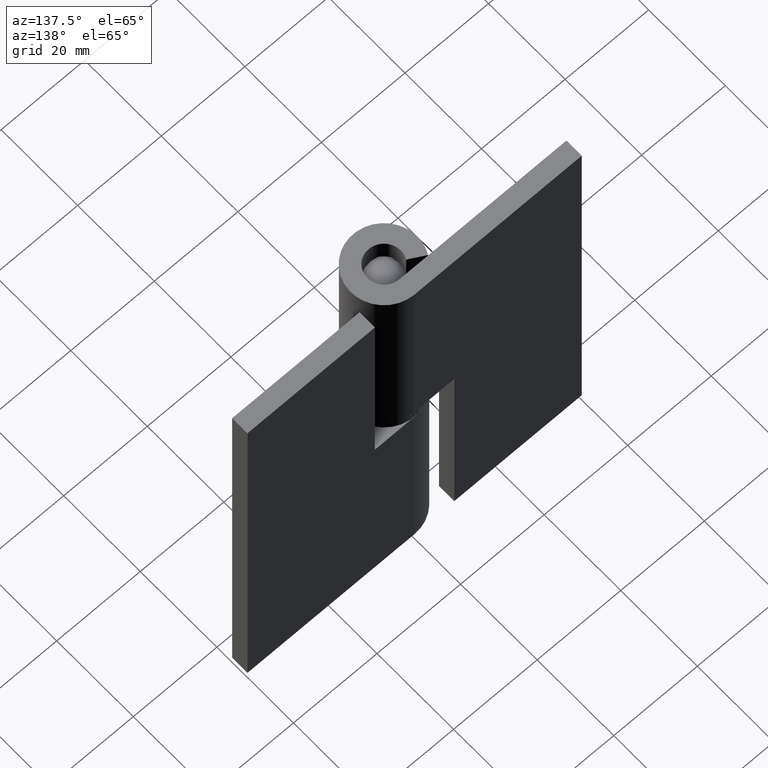
[diagram: clean part render]
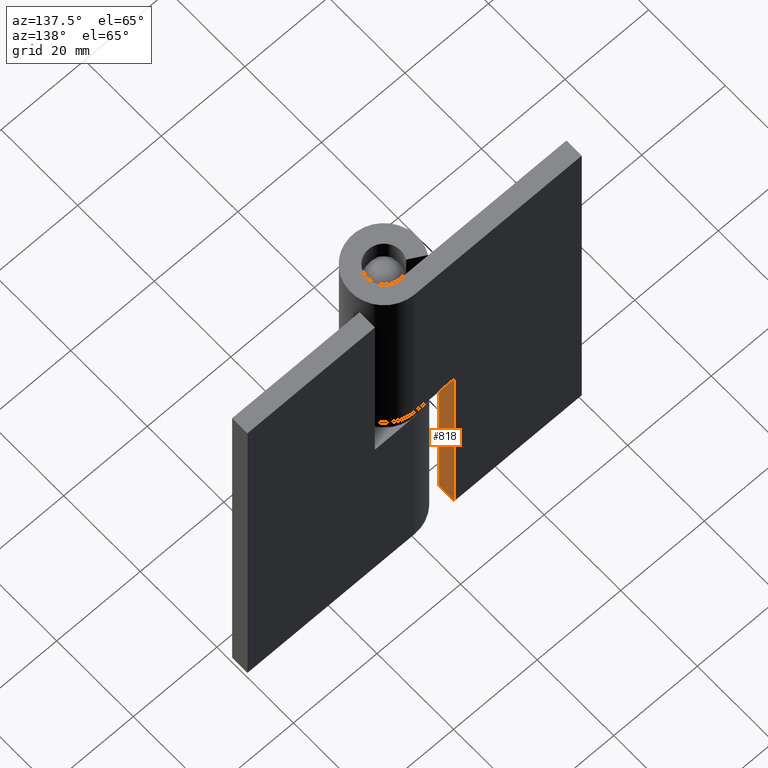
[diagram: same view with one face highlighted and labeled with its STEP entity id]
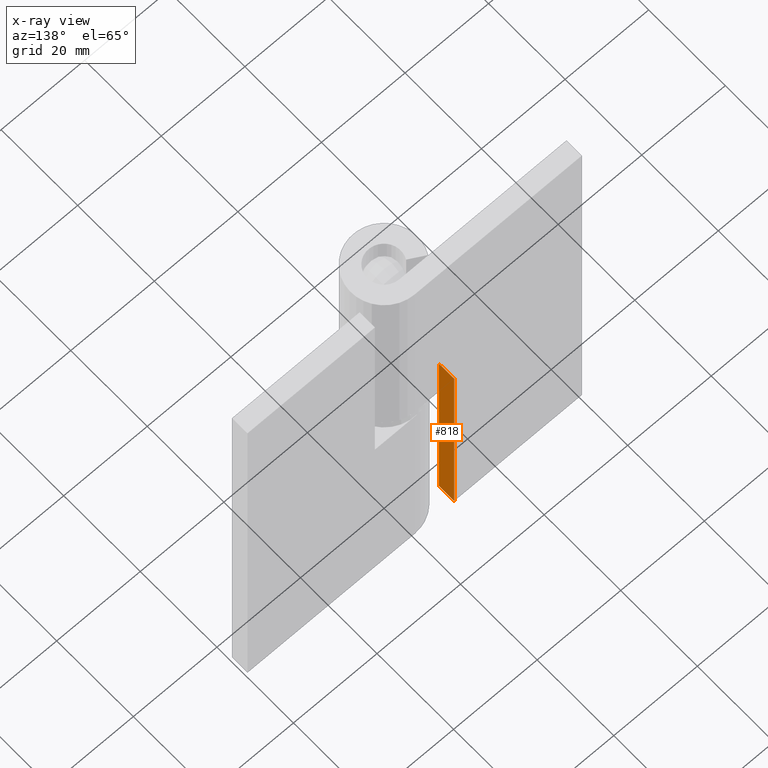
[diagram: x-ray of the same camera — body ghosted, the highlighted face saturated]
A machine part, auxiliary view. The second image highlights one B-rep face of the part: STEP entity #818.
The next image is the same camera in x-ray: the body ghosted, the highlighted face saturated — about 0% of this face is hidden behind the body in this view.
In plain terms, the highlighted face is a freeform B-spline surface patch.
Its self-contained STEP definition (entity closure, byte-faithful):
#783=CARTESIAN_POINT('',(-9.500000000000000,3.800200007752776,53.547449901152113));
#784=CARTESIAN_POINT('',(-9.500000000000000,3.800200007752776,-2.547451269078700));
#785=CARTESIAN_POINT('',(-9.500000000000000,8.199800099535585,53.547449901152113));
#786=CARTESIAN_POINT('',(-9.500000000000000,8.199800099535585,-2.547451269078700));
#787=B_SPLINE_SURFACE_WITH_KNOTS('',1,1,((#783,#785),(#784,#786)),.UNSPECIFIED.,.F.,.F.,.U.,(2,2),(2,2),(0.0,56.094901170230813),(0.0,4.399600091782808),.UNSPECIFIED.);
#788=CARTESIAN_POINT('',(-9.500000000000000,8.0,0.0));
#789=VERTEX_POINT('',#788);
#790=CARTESIAN_POINT('',(-9.500000000000000,4.0,0.0));
#791=VERTEX_POINT('',#790);
#792=CARTESIAN_POINT('',(-9.500000000000000,8.0,0.0));
#793=CARTESIAN_POINT('',(-9.500000000000000,4.0,0.0));
#794=QUASI_UNIFORM_CURVE('',1,(#792,#793),.UNSPECIFIED.,.F.,.U.);
#795=EDGE_CURVE('',#789,#791,#794,.T.);
#796=ORIENTED_EDGE('',*,*,#795,.F.);
#797=CARTESIAN_POINT('',(-9.500000000000000,8.0,51.0));
#798=VERTEX_POINT('',#797);
#799=CARTESIAN_POINT('',(-9.500000000000000,8.0,0.0));
#800=CARTESIAN_POINT('',(-9.500000000000000,8.0,51.0));
#801=QUASI_UNIFORM_CURVE('',1,(#799,#800),.UNSPECIFIED.,.F.,.U.);
#802=EDGE_CURVE('',#789,#798,#801,.T.);
#803=ORIENTED_EDGE('',*,*,#802,.T.);
#804=CARTESIAN_POINT('',(-9.500000000000000,4.0,51.0));
#805=VERTEX_POINT('',#804);
#806=CARTESIAN_POINT('',(-9.500000000000000,8.0,51.0));
#807=CARTESIAN_POINT('',(-9.500000000000000,4.0,51.0));
#808=QUASI_UNIFORM_CURVE('',1,(#806,#807),.UNSPECIFIED.,.F.,.U.);
#809=EDGE_CURVE('',#798,#805,#808,.T.);
#810=ORIENTED_EDGE('',*,*,#809,.T.);
#811=CARTESIAN_POINT('',(-9.500000000000000,4.0,0.0));
#812=CARTESIAN_POINT('',(-9.500000000000000,4.0,51.0));
#813=QUASI_UNIFORM_CURVE('',1,(#811,#812),.UNSPECIFIED.,.F.,.U.);
#814=EDGE_CURVE('',#791,#805,#813,.T.);
#815=ORIENTED_EDGE('',*,*,#814,.F.);
#816=EDGE_LOOP('',(#796,#803,#810,#815));
#817=FACE_OUTER_BOUND('',#816,.T.);
#818=ADVANCED_FACE('',(#817),#787,.T.);